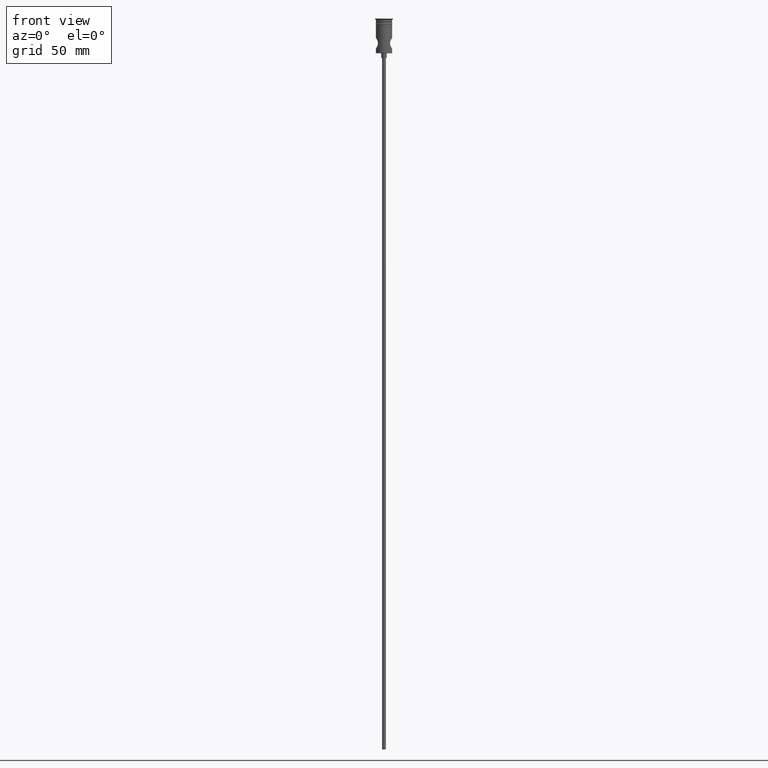
[diagram: clean part render]
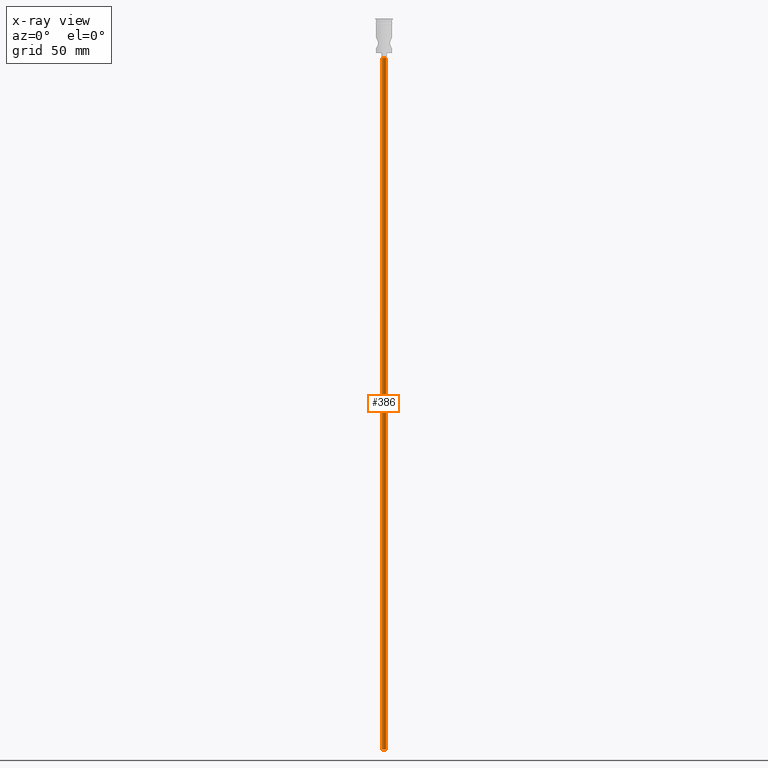
[diagram: x-ray — body ghosted, one internal face saturated and labeled with its STEP entity id]
A machine part, front view, then the same camera in x-ray: the body is ghosted and one INTERNAL B-rep face — a face not visible from any outside direction — is saturated and labeled: STEP entity #386.
In plain terms, the highlighted cylindrical surface (edge-blend (fillet) strip) has radius 1.25 mm, axis along (-0, -0, 1).
Its self-contained STEP definition (entity closure, byte-faithful):
#89 = EDGE_CURVE ( 'NONE', #740, #722, #170, .T. ) ;
#107 = VECTOR ( 'NONE', #552, 1000.000000000000000 ) ;
#133 = CIRCLE ( 'NONE', #266, 1.250000000000000000 ) ;
#170 = LINE ( 'NONE', #894, #1373 ) ;
#208 = VERTEX_POINT ( 'NONE', #796 ) ;
#216 = ORIENTED_EDGE ( 'NONE', *, *, #426, .T. ) ;
#220 = DIRECTION ( 'NONE',  ( -0.000000000000000000, -0.000000000000000000, 1.000000000000000000 ) ) ;
#236 = EDGE_CURVE ( 'NONE', #208, #1167, #416, .T. ) ;
#266 = AXIS2_PLACEMENT_3D ( 'NONE', #1186, #997, #879 ) ;
#327 = DIRECTION ( 'NONE',  ( -0.000000000000000000, -0.000000000000000000, 1.000000000000000000 ) ) ;
#339 = CIRCLE ( 'NONE', #687, 1.250000000000000000 ) ;
#386 = ADVANCED_FACE ( 'NONE', ( #1436 ), #887, .T. ) ;
#416 = LINE ( 'NONE', #1108, #107 ) ;
#426 = EDGE_CURVE ( 'NONE', #1167, #722, #133, .T. ) ;
#454 = ORIENTED_EDGE ( 'NONE', *, *, #89, .F. ) ;
#552 = DIRECTION ( 'NONE',  ( -0.000000000000000000, -0.000000000000000000, 1.000000000000000000 ) ) ;
#631 = CARTESIAN_POINT ( 'NONE',  ( -1.250000000000000000, 1.530808498934191571E-16, -25.50000000000000000 ) ) ;
#650 = ORIENTED_EDGE ( 'NONE', *, *, #236, .T. ) ;
#687 = AXIS2_PLACEMENT_3D ( 'NONE', #869, #1360, #954 ) ;
#695 = EDGE_LOOP ( 'NONE', ( #703, #650, #216, #454 ) ) ;
#703 = ORIENTED_EDGE ( 'NONE', *, *, #724, .F. ) ;
#722 = VERTEX_POINT ( 'NONE', #1347 ) ;
#724 = EDGE_CURVE ( 'NONE', #208, #740, #339, .T. ) ;
#740 = VERTEX_POINT ( 'NONE', #1418 ) ;
#796 = CARTESIAN_POINT ( 'NONE',  ( -1.250000000000000000, 1.530808498934191571E-16, -472.5000000000000568 ) ) ;
#869 = CARTESIAN_POINT ( 'NONE',  ( 0.000000000000000000, 0.000000000000000000, -472.5000000000000568 ) ) ;
#876 = AXIS2_PLACEMENT_3D ( 'NONE', #1313, #327, #1007 ) ;
#879 = DIRECTION ( 'NONE',  ( -1.000000000000000000, 0.000000000000000000, 0.000000000000000000 ) ) ;
#887 = CYLINDRICAL_SURFACE ( 'NONE', #876, 1.250000000000000000 ) ;
#894 = CARTESIAN_POINT ( 'NONE',  ( 1.250000000000000000, 0.000000000000000000, -472.5000000000000568 ) ) ;
#954 = DIRECTION ( 'NONE',  ( -1.000000000000000000, 0.000000000000000000, 0.000000000000000000 ) ) ;
#997 = DIRECTION ( 'NONE',  ( 0.000000000000000000, 0.000000000000000000, -1.000000000000000000 ) ) ;
#1007 = DIRECTION ( 'NONE',  ( 1.000000000000000000, 0.000000000000000000, 0.000000000000000000 ) ) ;
#1108 = CARTESIAN_POINT ( 'NONE',  ( -1.250000000000000000, 1.530808498934191571E-16, -472.5000000000000568 ) ) ;
#1167 = VERTEX_POINT ( 'NONE', #631 ) ;
#1186 = CARTESIAN_POINT ( 'NONE',  ( 0.000000000000000000, 0.000000000000000000, -25.50000000000000000 ) ) ;
#1313 = CARTESIAN_POINT ( 'NONE',  ( 0.000000000000000000, 0.000000000000000000, -472.5000000000000568 ) ) ;
#1347 = CARTESIAN_POINT ( 'NONE',  ( 1.250000000000000000, 0.000000000000000000, -25.50000000000000000 ) ) ;
#1360 = DIRECTION ( 'NONE',  ( 0.000000000000000000, 0.000000000000000000, -1.000000000000000000 ) ) ;
#1373 = VECTOR ( 'NONE', #220, 1000.000000000000000 ) ;
#1418 = CARTESIAN_POINT ( 'NONE',  ( 1.250000000000000000, 0.000000000000000000, -472.5000000000000568 ) ) ;
#1436 = FACE_OUTER_BOUND ( 'NONE', #695, .T. ) ;